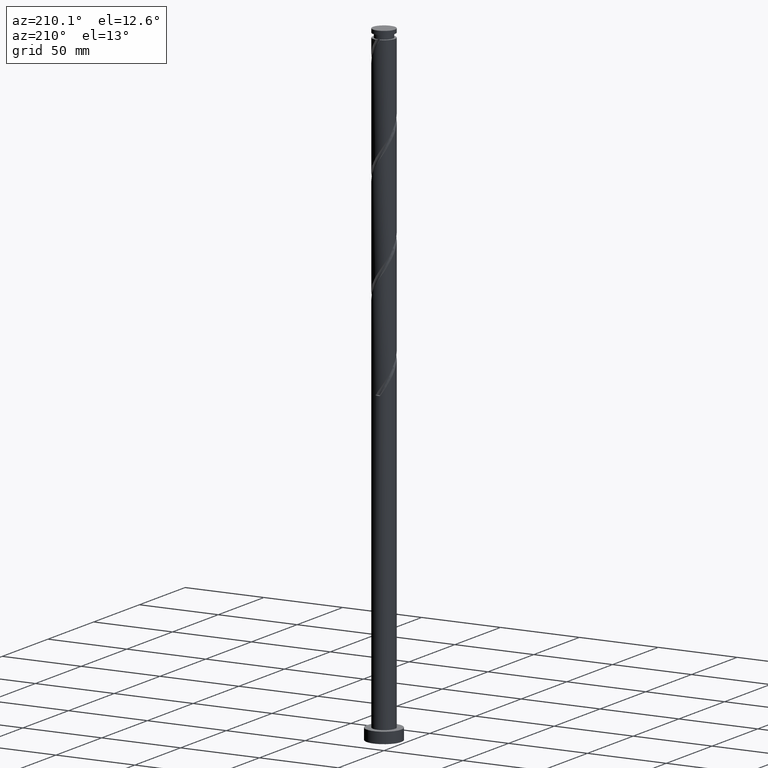
[diagram: clean part render]
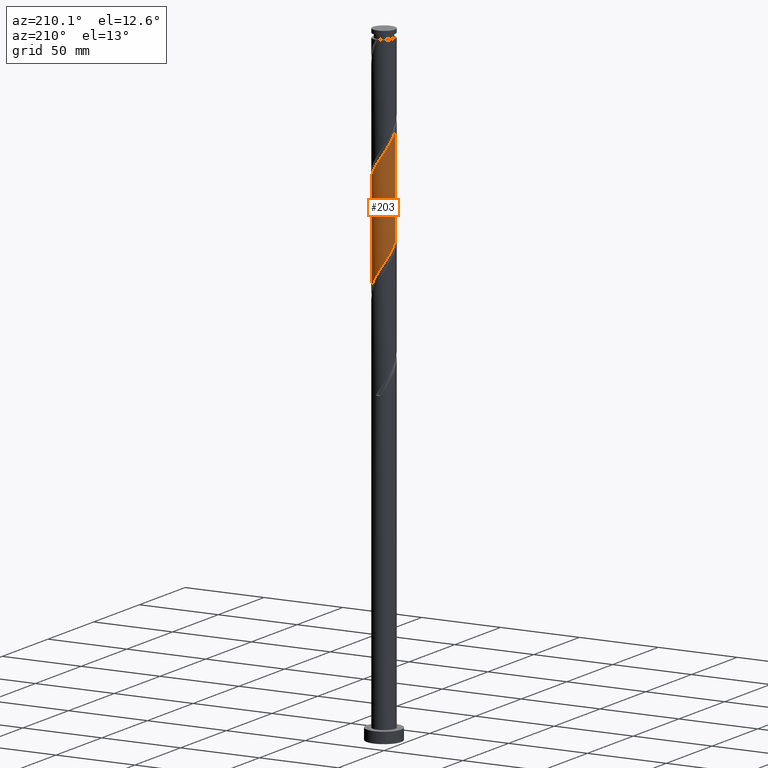
[diagram: same view with one face highlighted and labeled with its STEP entity id]
A machine part, auxiliary view. The second image highlights one B-rep face of the part: STEP entity #203.
In plain terms, the highlighted cylindrical surface (edge-blend (fillet) strip) has radius 7 mm, axis along (-0, -0, -1).
Its self-contained STEP definition (entity closure, byte-faithful):
#54 = LINE ( 'NONE', #997, #291 ) ;
#57 = CARTESIAN_POINT ( 'NONE',  ( -7.000000000000000888, 0.000000000000000000, 400.0000000000000000 ) ) ;
#78 = CARTESIAN_POINT ( 'NONE',  ( -6.403711300393656991, 2.921263373008176067, 338.0995627110046939 ) ) ;
#80 = FACE_OUTER_BOUND ( 'NONE', #1984, .T. ) ;
#88 = CARTESIAN_POINT ( 'NONE',  ( 0.7994309478212532349, 6.993011388016906693, 324.7662293776712090 ) ) ;
#89 = LINE ( 'NONE', #57, #1718 ) ;
#94 = EDGE_CURVE ( 'NONE', #1946, #1024, #998, .T. ) ;
#108 = CARTESIAN_POINT ( 'NONE',  ( 7.000000000000012434, 3.737103855166317141E-15, 309.3074528008164066 ) ) ;
#118 = EDGE_CURVE ( 'NONE', #255, #1946, #89, .T. ) ;
#188 = ORIENTED_EDGE ( 'NONE', *, *, #1415, .T. ) ;
#198 = CARTESIAN_POINT ( 'NONE',  ( 6.954702939942481343, 0.7950515814432423944, 248.0995627110046087 ) ) ;
#203 = ADVANCED_FACE ( 'NONE', ( #80 ), #231, .T. ) ;
#210 = CARTESIAN_POINT ( 'NONE',  ( 2.788816603122402871, 6.420475212486132399, 259.2106738221157798 ) ) ;
#219 = CARTESIAN_POINT ( 'NONE',  ( -4.165886336820082470, 5.625423631042889561, 270.3217849332268088 ) ) ;
#229 = CARTESIAN_POINT ( 'NONE',  ( 1.517660616487705783, 6.833498829528128482, 323.6551182665601232 ) ) ;
#231 = CYLINDRICAL_SURFACE ( 'NONE', #1823, 7.000000000000000888 ) ;
#239 = DIRECTION ( 'NONE',  ( -1.000000000000000000, 0.000000000000000000, 0.000000000000000000 ) ) ;
#249 = CARTESIAN_POINT ( 'NONE',  ( 6.897786797805730785, 1.400655348501350206, 311.4328960443379515 ) ) ;
#255 = VERTEX_POINT ( 'NONE', #1351 ) ;
#258 = CARTESIAN_POINT ( 'NONE',  ( -5.159153274858738314, 4.731082062965566770, 334.7662293776713796 ) ) ;
#291 = VECTOR ( 'NONE', #1287, 1000.000000000000000 ) ;
#359 = CARTESIAN_POINT ( 'NONE',  ( -6.455840984887133871, 2.804178184623774772, 275.8773404887823517 ) ) ;
#380 = CARTESIAN_POINT ( 'NONE',  ( 2.113997465871818804, 6.713591648853531879, 260.3217849332268088 ) ) ;
#392 = CARTESIAN_POINT ( 'NONE',  ( 6.637425475935888386, 2.223641844227005393, 250.3217849332268088 ) ) ;
#409 = CARTESIAN_POINT ( 'NONE',  ( -6.954702939942492002, 0.7950515814432463912, 341.4328960443378378 ) ) ;
#502 = CARTESIAN_POINT ( 'NONE',  ( -6.676813891346427887, 2.102416766562563488, 276.9884515998934944 ) ) ;
#504 =( BOUNDED_CURVE ( )  B_SPLINE_CURVE ( 2, ( #108, #851, #1610, #249, #974, #987, #1951, #1317, #867, #698, #569, #716, #1482, #1461, #229, #88, #1008, #708, #684, #1168, #1310, #1787, #1596, #1941, #258, #830, #1451, #78, #1299, #1630, #409, #1018, #1929 ),
 .UNSPECIFIED., .F., .T. ) 
 B_SPLINE_CURVE_WITH_KNOTS ( ( 3, 2, 2, 2, 2, 2, 2, 2, 2, 2, 2, 2, 2, 2, 2, 2, 3 ),
 ( 0.4295286012773114614, 0.4333333333333333481, 0.4416666666666666519, 0.4499999999999999556, 0.4583333333333333703, 0.4666666666666666741, 0.4749999999999999778, 0.4833333333333332815, 0.4916666666666666963, 0.5000000000000000000, 0.5083333333333333037, 0.5166666666666666075, 0.5250000000000000222, 0.5333333333333333259, 0.5416666666666667407, 0.5500000000000000444, 0.5545286012773116280 ),
 .UNSPECIFIED. ) 
 CURVE ( )  GEOMETRIC_REPRESENTATION_ITEM ( )  RATIONAL_B_SPLINE_CURVE ( ( 0.9066196499552230392, 0.9068171577856358745, 0.9090909090909347068, 0.9041108139711830916, 0.9090909090909347068, 0.9041108139711830916, 0.9090909090909347068, 0.9041108139711830916, 0.9090909090909347068, 0.9041108139711830916, 0.9090909090909347068, 0.9041108139711830916, 0.9090909090909347068, 0.9041108139711830916, 0.9090909090909347068, 0.9041108139711830916, 0.9090909090909347068, 0.9041108139711830916, 0.9090909090909347068, 0.9041108139711830916, 0.9090909090909347068, 0.9041108139711830916, 0.9090909090909347068, 0.9041108139711830916, 0.9090909090909347068, 0.9041108139711830916, 0.9090909090909347068, 0.9041108139711830916, 0.9090909090909347068, 0.9041108139711830916, 0.9090909090909347068, 0.9063845652764819238, 0.9066196499552231503 ) ) 
 REPRESENTATION_ITEM ( '' )  );
#512 = CARTESIAN_POINT ( 'NONE',  ( -5.731743942366914091, 4.085144978138296246, 273.6551182665600663 ) ) ;
#518 = CARTESIAN_POINT ( 'NONE',  ( 7.000000000000000888, 7.384517217808689599E-15, 246.8916726211927539 ) ) ;
#522 = CARTESIAN_POINT ( 'NONE',  ( -6.897786797805721903, 1.400655348501351094, 278.0995627110045803 ) ) ;
#569 = CARTESIAN_POINT ( 'NONE',  ( 4.165886336820090463, 5.625423631042894002, 319.2106738221157229 ) ) ;
#665 = CARTESIAN_POINT ( 'NONE',  ( -2.235890285154146451, 6.673986271039347606, 266.9884515998935512 ) ) ;
#684 = CARTESIAN_POINT ( 'NONE',  ( -1.392982411949271748, 6.860000000000010090, 328.0995627110046371 ) ) ;
#689 = EDGE_CURVE ( 'NONE', #1389, #255, #504, .T. ) ;
#698 = CARTESIAN_POINT ( 'NONE',  ( 4.757142185606320517, 5.187571333407690055, 318.0995627110046371 ) ) ;
#699 = CARTESIAN_POINT ( 'NONE',  ( 5.159153274858732097, 4.731082062965556112, 254.7662293776712943 ) ) ;
#708 = CARTESIAN_POINT ( 'NONE',  ( -0.6719673580267262469, 7.006408351146477642, 326.9884515998934376 ) ) ;
#716 = CARTESIAN_POINT ( 'NONE',  ( 3.574630488033866627, 6.063275928678099724, 320.3217849332268088 ) ) ;
#717 = CARTESIAN_POINT ( 'NONE',  ( -7.000000000000002665, 9.178327068288536215E-15, 280.2250059545260683 ) ) ;
#802 = CARTESIAN_POINT ( 'NONE',  ( -7.000000000000002665, 9.178327068288536215E-15, 280.2250059545260683 ) ) ;
#812 = CARTESIAN_POINT ( 'NONE',  ( 7.000000000000000000, 0.3988161621250300160, 247.4972639305773043 ) ) ;
#823 = CARTESIAN_POINT ( 'NONE',  ( 3.463635740372987826, 6.127358776118730255, 258.0995627110045803 ) ) ;
#830 = CARTESIAN_POINT ( 'NONE',  ( -5.656410037065892737, 4.188833203393127924, 335.8773404887823517 ) ) ;
#843 = CARTESIAN_POINT ( 'NONE',  ( 0.000000000000000000, 0.000000000000000000, 400.0000000000000000 ) ) ;
#851 = CARTESIAN_POINT ( 'NONE',  ( 7.000000000000012434, 0.3349079950072416101, 309.8160013263804444 ) ) ;
#852 = CARTESIAN_POINT ( 'NONE',  ( 5.656410037065887408, 4.188833203393116378, 253.6551182665601800 ) ) ;
#867 = CARTESIAN_POINT ( 'NONE',  ( 5.244443063986624409, 4.636358155772991374, 316.9884515998934944 ) ) ;
#945 = CARTESIAN_POINT ( 'NONE',  ( -7.000000000000002665, 0.3349079950072328948, 279.7164574289620305 ) ) ;
#965 = CARTESIAN_POINT ( 'NONE',  ( -6.968026513106281961, 0.6682862505303576173, 279.2106738221156661 ) ) ;
#974 = CARTESIAN_POINT ( 'NONE',  ( 6.676813891346439434, 2.102416766562560380, 312.5440071554491510 ) ) ;
#978 = CARTESIAN_POINT ( 'NONE',  ( -2.905260386594000099, 6.368631099858720113, 268.0995627110045234 ) ) ;
#986 = CARTESIAN_POINT ( 'NONE',  ( 7.000000000000012434, 3.737103855166317141E-15, 309.3074528008164066 ) ) ;
#987 = CARTESIAN_POINT ( 'NONE',  ( 6.455840984887146305, 2.804178184623772108, 313.6551182665602937 ) ) ;
#997 = CARTESIAN_POINT ( 'NONE',  ( 7.000000000000000888, 8.572527594031474176E-16, 400.0000000000000000 ) ) ;
#998 =( BOUNDED_CURVE ( )  B_SPLINE_CURVE ( 2, ( #802, #945, #965, #522, #502, #359, #1931, #512, #1614, #1589, #219, #1768, #978, #665, #1118, #1269, #1908, #1743, #1897, #380, #210, #823, #1432, #1279, #699, #852, #1260, #1599, #392, #1000, #198, #812, #1623 ),
 .UNSPECIFIED., .F., .T. ) 
 B_SPLINE_CURVE_WITH_KNOTS ( ( 3, 2, 2, 2, 2, 2, 2, 2, 2, 2, 2, 2, 2, 2, 2, 2, 3 ),
 ( 0.6795286012773112949, 0.6833333333333333481, 0.6916666666666666519, 0.6999999999999999556, 0.7083333333333333703, 0.7166666666666666741, 0.7249999999999999778, 0.7333333333333332815, 0.7416666666666666963, 0.7500000000000000000, 0.7583333333333333037, 0.7666666666666667185, 0.7750000000000000222, 0.7833333333333333259, 0.7916666666666666297, 0.8000000000000000444, 0.8045286012773114059 ),
 .UNSPECIFIED. ) 
 CURVE ( )  GEOMETRIC_REPRESENTATION_ITEM ( )  RATIONAL_B_SPLINE_CURVE ( ( 0.9066196499552172661, 0.9068171577856298793, 0.9090909090909288226, 0.9041108139711772074, 0.9090909090909288226, 0.9041108139711772074, 0.9090909090909288226, 0.9041108139711772074, 0.9090909090909288226, 0.9041108139711772074, 0.9090909090909288226, 0.9041108139711772074, 0.9090909090909288226, 0.9041108139711772074, 0.9090909090909288226, 0.9041108139711772074, 0.9090909090909288226, 0.9041108139711772074, 0.9090909090909288226, 0.9041108139711772074, 0.9090909090909288226, 0.9041108139711772074, 0.9090909090909288226, 0.9041108139711772074, 0.9090909090909288226, 0.9041108139711772074, 0.9090909090909288226, 0.9041108139711772074, 0.9090909090909288226, 0.9041108139711772074, 0.9090909090909288226, 0.9063845652764761507, 0.9066196499552172661 ) ) 
 REPRESENTATION_ITEM ( '' )  );
#1000 = CARTESIAN_POINT ( 'NONE',  ( 6.871139651478125110, 1.526020315445847153, 249.2106738221156945 ) ) ;
#1008 = CARTESIAN_POINT ( 'NONE',  ( 0.06373179489726354952, 6.999709869581692168, 325.8773404887823517 ) ) ;
#1018 = CARTESIAN_POINT ( 'NONE',  ( -7.000000000000012434, 0.3988161621250165267, 342.0351948247652558 ) ) ;
#1024 = VERTEX_POINT ( 'NONE', #518 ) ;
#1118 = CARTESIAN_POINT ( 'NONE',  ( -1.517660616487697567, 6.833498829528120488, 265.8773404887824086 ) ) ;
#1168 = CARTESIAN_POINT ( 'NONE',  ( -2.113997465871814363, 6.713591648853544314, 329.2106738221156661 ) ) ;
#1260 = CARTESIAN_POINT ( 'NONE',  ( 6.030060668729769091, 3.555048288200642670, 252.5440071554490373 ) ) ;
#1269 = CARTESIAN_POINT ( 'NONE',  ( -0.7994309478212489051, 6.993011388016896035, 264.7662293776712659 ) ) ;
#1279 = CARTESIAN_POINT ( 'NONE',  ( 4.661896512651579449, 5.273330922537992294, 255.8773404887823517 ) ) ;
#1287 = DIRECTION ( 'NONE',  ( -0.000000000000000000, -0.000000000000000000, -1.000000000000000000 ) ) ;
#1299 = CARTESIAN_POINT ( 'NONE',  ( -6.637425475935894603, 2.223641844227014719, 339.2106738221156661 ) ) ;
#1310 = CARTESIAN_POINT ( 'NONE',  ( -2.788816603122402871, 6.420475212486143946, 330.3217849332268656 ) ) ;
#1317 = CARTESIAN_POINT ( 'NONE',  ( 5.731743942366926525, 4.085144978138296246, 315.8773404887824654 ) ) ;
#1351 = CARTESIAN_POINT ( 'NONE',  ( -7.000000000000009770, -9.268017560812467488E-16, 342.6407861341497778 ) ) ;
#1389 = VERTEX_POINT ( 'NONE', #986 ) ;
#1415 = EDGE_CURVE ( 'NONE', #1389, #1024, #54, .T. ) ;
#1423 = DIRECTION ( 'NONE',  ( -0.000000000000000000, -0.000000000000000000, -1.000000000000000000 ) ) ;
#1432 = CARTESIAN_POINT ( 'NONE',  ( 4.062766126512285858, 5.700344849328359942, 256.9884515998934944 ) ) ;
#1451 = CARTESIAN_POINT ( 'NONE',  ( -6.030060668729773532, 3.555048288200651108, 336.9884515998936649 ) ) ;
#1454 = DIRECTION ( 'NONE',  ( -0.000000000000000000, -0.000000000000000000, -1.000000000000000000 ) ) ;
#1461 = CARTESIAN_POINT ( 'NONE',  ( 2.235890285154152668, 6.673986271039353824, 322.5440071554489805 ) ) ;
#1476 = ORIENTED_EDGE ( 'NONE', *, *, #118, .F. ) ;
#1482 = CARTESIAN_POINT ( 'NONE',  ( 2.905260386594007205, 6.368631099858728994, 321.4328960443378946 ) ) ;
#1589 = CARTESIAN_POINT ( 'NONE',  ( -4.757142185606312523, 5.187571333407684726, 271.4328960443379515 ) ) ;
#1596 = CARTESIAN_POINT ( 'NONE',  ( -4.062766126512286746, 5.700344849328372376, 332.5440071554491510 ) ) ;
#1599 = CARTESIAN_POINT ( 'NONE',  ( 6.403711300393648109, 2.921263373008168074, 251.4328960443379515 ) ) ;
#1610 = CARTESIAN_POINT ( 'NONE',  ( 6.968026513106293507, 0.6682862505303511780, 310.3217849332268088 ) ) ;
#1614 = CARTESIAN_POINT ( 'NONE',  ( -5.244443063986611975, 4.636358155772989598, 272.5440071554490373 ) ) ;
#1623 = CARTESIAN_POINT ( 'NONE',  ( 7.000000000000000888, 7.384517217808689599E-15, 246.8916726211927539 ) ) ;
#1630 = CARTESIAN_POINT ( 'NONE',  ( -6.871139651478133992, 1.526020315445854703, 340.3217849332268088 ) ) ;
#1718 = VECTOR ( 'NONE', #1423, 1000.000000000000000 ) ;
#1743 = CARTESIAN_POINT ( 'NONE',  ( 0.6719673580267319091, 7.006408351146465208, 262.5440071554490373 ) ) ;
#1768 = CARTESIAN_POINT ( 'NONE',  ( -3.574630488033854636, 6.063275928678096172, 269.2106738221157798 ) ) ;
#1787 = CARTESIAN_POINT ( 'NONE',  ( -3.463635740372990046, 6.127358776118742689, 331.4328960443378946 ) ) ;
#1792 = ORIENTED_EDGE ( 'NONE', *, *, #689, .F. ) ;
#1823 = AXIS2_PLACEMENT_3D ( 'NONE', #843, #1454, #239 ) ;
#1897 = CARTESIAN_POINT ( 'NONE',  ( 1.392982411949274191, 6.859999999999999432, 261.4328960443379515 ) ) ;
#1908 = CARTESIAN_POINT ( 'NONE',  ( -0.06373179489725845637, 6.999709869581681509, 263.6551182665601232 ) ) ;
#1929 = CARTESIAN_POINT ( 'NONE',  ( -7.000000000000009770, -9.268017560812467488E-16, 342.6407861341497778 ) ) ;
#1931 = CARTESIAN_POINT ( 'NONE',  ( -6.093792463627023537, 3.444661581381034843, 274.7662293776712659 ) ) ;
#1941 = CARTESIAN_POINT ( 'NONE',  ( -4.661896512651583002, 5.273330922538002064, 333.6551182665600663 ) ) ;
#1946 = VERTEX_POINT ( 'NONE', #717 ) ;
#1951 = CARTESIAN_POINT ( 'NONE',  ( 6.093792463627035083, 3.444661581381037951, 314.7662293776712090 ) ) ;
#1984 = EDGE_LOOP ( 'NONE', ( #1792, #188, #2011, #1476 ) ) ;
#2011 = ORIENTED_EDGE ( 'NONE', *, *, #94, .F. ) ;